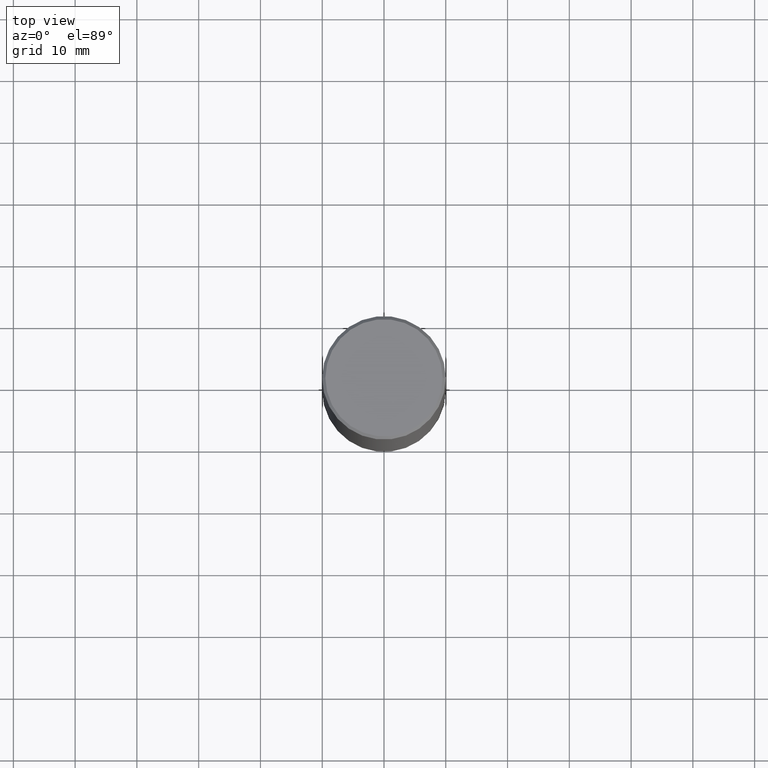
[diagram: clean part render]
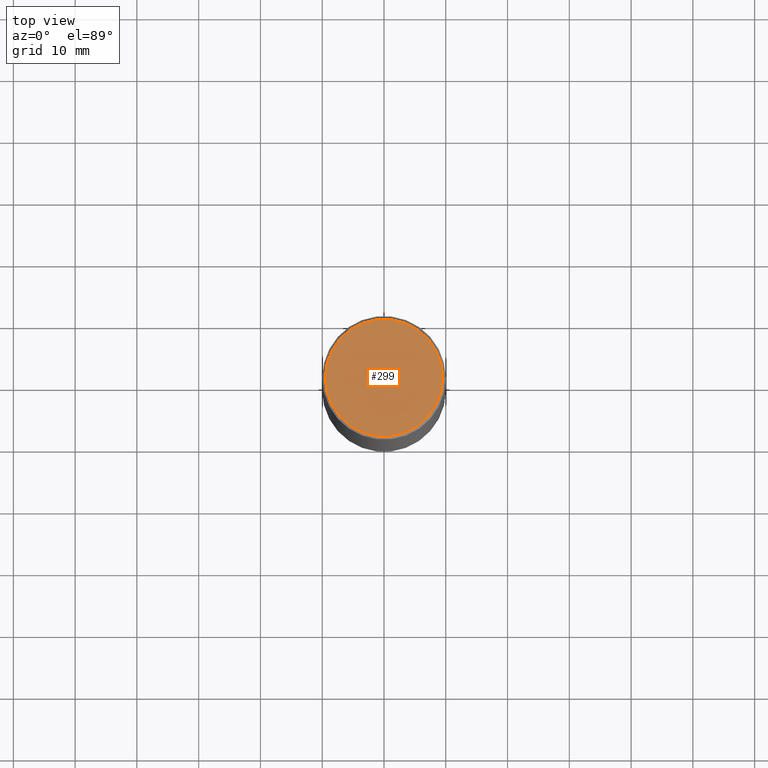
[diagram: same view with one face highlighted and labeled with its STEP entity id]
A machine part, top view. The second image highlights one B-rep face of the part: STEP entity #299.
In plain terms, the highlighted planar face has unit normal (0, -0, -1).
Its self-contained STEP definition (entity closure, byte-faithful):
#11 = ORIENTED_EDGE ( 'NONE', *, *, #125, .T. ) ;
#20 = AXIS2_PLACEMENT_3D ( 'NONE', #179, #74, #341 ) ;
#29 = PLANE ( 'NONE',  #85 ) ;
#39 = CARTESIAN_POINT ( 'NONE',  ( -0.3737000000000003097, 2.644447966039789847E-15, -2.219626494852397645E-16 ) ) ;
#56 = CIRCLE ( 'NONE', #106, 0.3737000000000003097 ) ;
#74 = DIRECTION ( 'NONE',  ( -2.445468806185136597E-29, 3.491481338843145583E-15, 1.000000000000000000 ) ) ;
#82 = DIRECTION ( 'NONE',  ( -1.000000000000000000, 6.982962677686265922E-15, -4.876176775795935793E-29 ) ) ;
#85 = AXIS2_PLACEMENT_3D ( 'NONE', #323, #357, #82 ) ;
#87 = CIRCLE ( 'NONE', #20, 0.3737000000000003097 ) ;
#98 = VERTEX_POINT ( 'NONE', #39 ) ;
#106 = AXIS2_PLACEMENT_3D ( 'NONE', #146, #268, #169 ) ;
#125 = EDGE_CURVE ( 'NONE', #317, #98, #56, .T. ) ;
#146 = CARTESIAN_POINT ( 'NONE',  ( 5.428027354543142984E-45, -7.749784485978325769E-31, -2.219626494852213988E-16 ) ) ;
#169 = DIRECTION ( 'NONE',  ( 1.000000000000000000, -6.982962677686266711E-15, 4.877734241229871763E-29 ) ) ;
#179 = CARTESIAN_POINT ( 'NONE',  ( 5.428027354543142984E-45, -7.749784485978325769E-31, -2.219626494852213988E-16 ) ) ;
#226 = CARTESIAN_POINT ( 'NONE',  ( 0.3737000000000003097, -2.667287895133369937E-15, -2.219626494852029345E-16 ) ) ;
#257 = EDGE_LOOP ( 'NONE', ( #306, #11 ) ) ;
#268 = DIRECTION ( 'NONE',  ( -2.445468806185136597E-29, 3.491481338843145583E-15, 1.000000000000000000 ) ) ;
#299 = ADVANCED_FACE ( 'NONE', ( #388 ), #29, .F. ) ;
#306 = ORIENTED_EDGE ( 'NONE', *, *, #415, .T. ) ;
#317 = VERTEX_POINT ( 'NONE', #226 ) ;
#323 = CARTESIAN_POINT ( 'NONE',  ( 2.609533152651359776E-15, 0.3737000000000003097, -1.415747901068295320E-15 ) ) ;
#341 = DIRECTION ( 'NONE',  ( 1.000000000000000000, -6.982962677686266711E-15, 4.877734241229871763E-29 ) ) ;
#357 = DIRECTION ( 'NONE',  ( 2.438088387897960049E-29, -3.491481338843145188E-15, -1.000000000000000000 ) ) ;
#388 = FACE_OUTER_BOUND ( 'NONE', #257, .T. ) ;
#415 = EDGE_CURVE ( 'NONE', #98, #317, #87, .T. ) ;